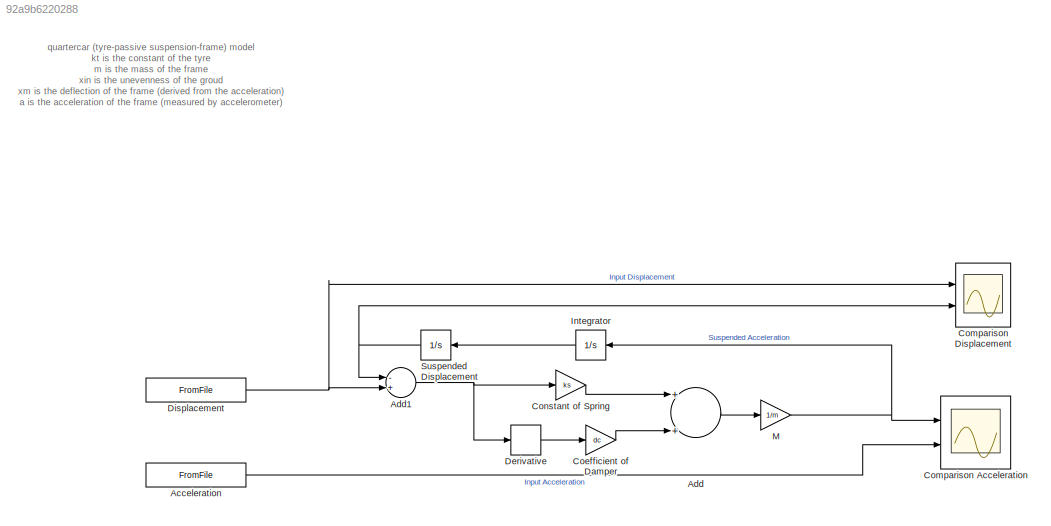
MODEL slx_92a9b6220288
KIND model
CONFIG AbsTol = auto
CONFIG FixedStep = auto
CONFIG MaxStep = auto
CONFIG MinStep = auto
CONFIG RelTol = 1e-3
CONFIG SampleTimeConstraint = Unconstrained
CONFIG Solver = VariableStepAuto
CONFIG SolverMode = SingleTasking
CONFIG SolverName = VariableStepAuto
CONFIG StartTime = 0.0
CONFIG StopTime = 92
BLOCK [FromFile] Acceleration
  ExtrapolationAfterLastDataPoint = Hold last value
  ExtrapolationBeforeFirstDataPoint = Hold first value
  FileName = REC0826_filteracce.mat
  SampleTime = 1/3200
BLOCK [Sum] Add
  InputSameDT = off
  OutDataTypeStr = Inherit: Inherit via internal rule
  Ports = [2, 1]
  SaturateOnIntegerOverflow = off
BLOCK [Sum] Add1
  InputSameDT = off
  Inputs = -+
  OutDataTypeStr = Inherit: Inherit via internal rule
  Ports = [2, 1]
  SaturateOnIntegerOverflow = off
BLOCK [Gain] Coefficient of Damper
  Gain = dc
  OutDataTypeStr = Inherit: Inherit via internal rule
  ParamDataTypeStr = Inherit: Inherit via internal rule
  SaturateOnIntegerOverflow = off
BLOCK [Scope] Comparison Acceleration
  NumInputPorts = 2
  Ports = [2]
  ScopeSpecificationString = Simulink.scopes.TimeScopeBlockCfg('CurrentConfiguration', extmgr.ConfigurationSet(extmgr.Configuration('Core','General UI',true,'FigureColor',[1 1 1]),extmgr.Configuration('Core','Source UI',true),extmgr.Configuration('Sources','WiredSimulink',true,'SampleTime','1/3200','DataLoggingVariableName','ScopeData1'),extmgr.Configuration('Visuals','Time Domain',true,'PlotType','Line','SerializedDisplays',...<+1799ch>
BLOCK [Scope] Comparison Displacement
  NumInputPorts = 2
  Ports = [2]
  ScopeSpecificationString = Simulink.scopes.TimeScopeBlockCfg('CurrentConfiguration', extmgr.ConfigurationSet(extmgr.Configuration('Core','General UI',true,'FigureColor',[1 1 1]),extmgr.Configuration('Core','Source UI',true),extmgr.Configuration('Sources','WiredSimulink',true,'SampleTime','1/3200'),extmgr.Configuration('Visuals','Time Domain',true,'PlotType','Line','SerializedDisplays',{struct('MinYLimReal','-0.02074','MaxYL...<+1808ch>
BLOCK [Gain] Constant of Spring
  Gain = ks
  OutDataTypeStr = Inherit: Inherit via internal rule
  ParamDataTypeStr = Inherit: Inherit via internal rule
  SaturateOnIntegerOverflow = off
BLOCK [Derivative] Derivative
  CoefficientInTFapproximation = 0
BLOCK [FromFile] Displacement
  ExtrapolationAfterLastDataPoint = Hold last value
  ExtrapolationBeforeFirstDataPoint = Hold first value
  FileName = REC0826ch2_dis.mat
  SampleTime = 1/3200
BLOCK [Integrator] Integrator
  Ports = [1, 1]
BLOCK [Gain] M
  Gain = 1/m
  OutDataTypeStr = Inherit: Inherit via internal rule
  ParamDataTypeStr = Inherit: Inherit via internal rule
  SaturateOnIntegerOverflow = off
BLOCK [Integrator] Suspended Displacement
  Ports = [1, 1]
ANNOTATION (root): quartercar (tyre-passive suspension-frame) model kt is the constant of the tyre m is the mass of the frame xin is the unevenness of the groud xm is the deflection of the frame (derived from the acceleration) a is the acceleration of the frame (measured by accelerometer) Formula: ma = (xin - xm)*kt Hence: xin =ma/kt + xm
LINE Acceleration:1 -> Comparison Acceleration:2
NET Add1:1 -> Constant of Spring:1, Derivative:1
LINE Add:1 -> M:1
LINE Coefficient of Damper:1 -> Add:2
LINE Constant of Spring:1 -> Add:1
LINE Derivative:1 -> Coefficient of Damper:1
NET Displacement:1 -> Add1:2, Comparison Displacement:1
LINE Integrator:1 -> Suspended Displacement:1
NET M:1 -> Comparison Acceleration:1, Integrator:1
NET Suspended Displacement:1 -> Add1:1, Comparison Displacement:2
note: NET lines group one-source signal fan-out (src -> all destinations, sorted); 1:1 wires keep LINE
